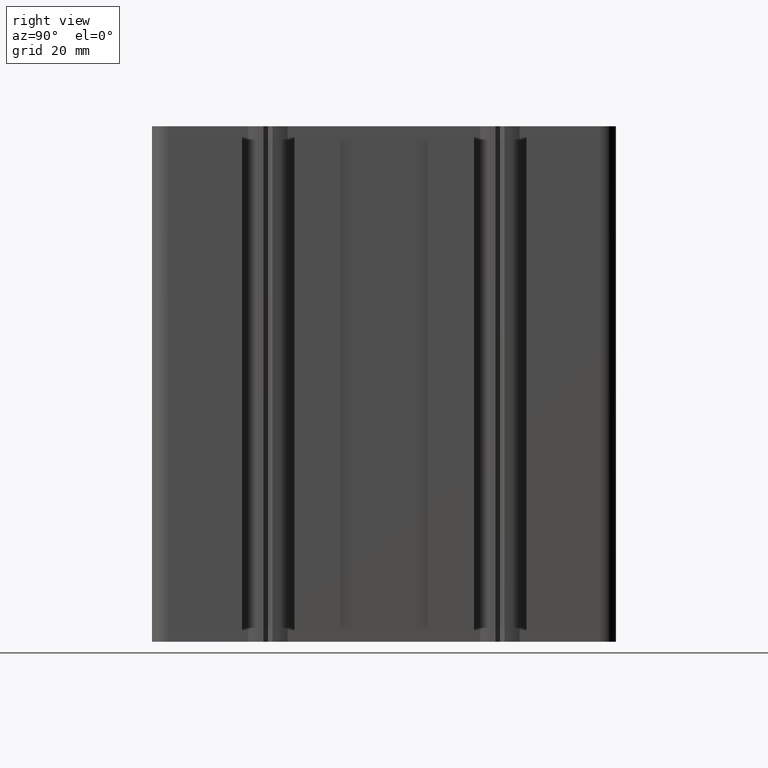
[diagram: clean part render]
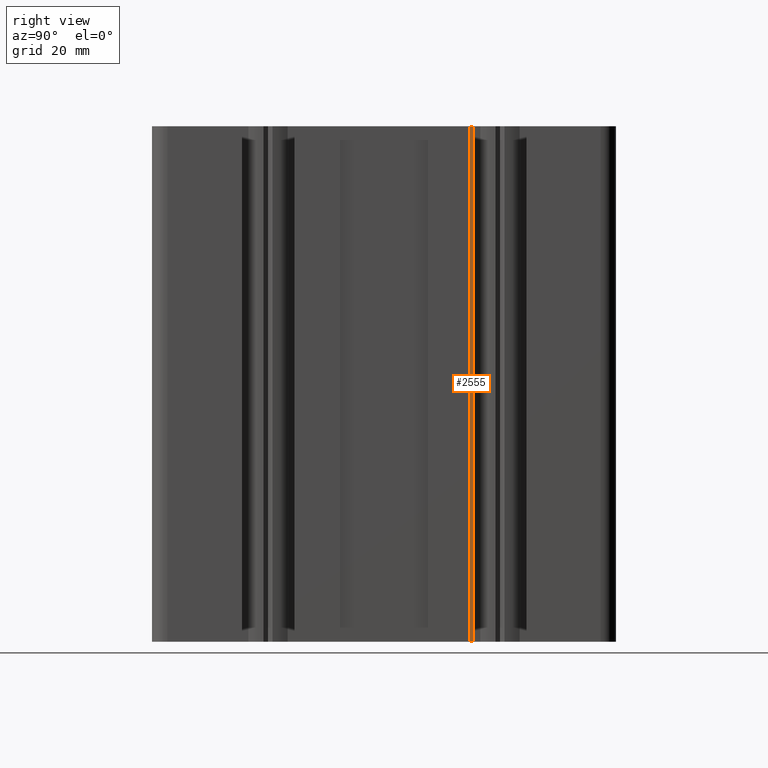
[diagram: same view with one face highlighted and labeled with its STEP entity id]
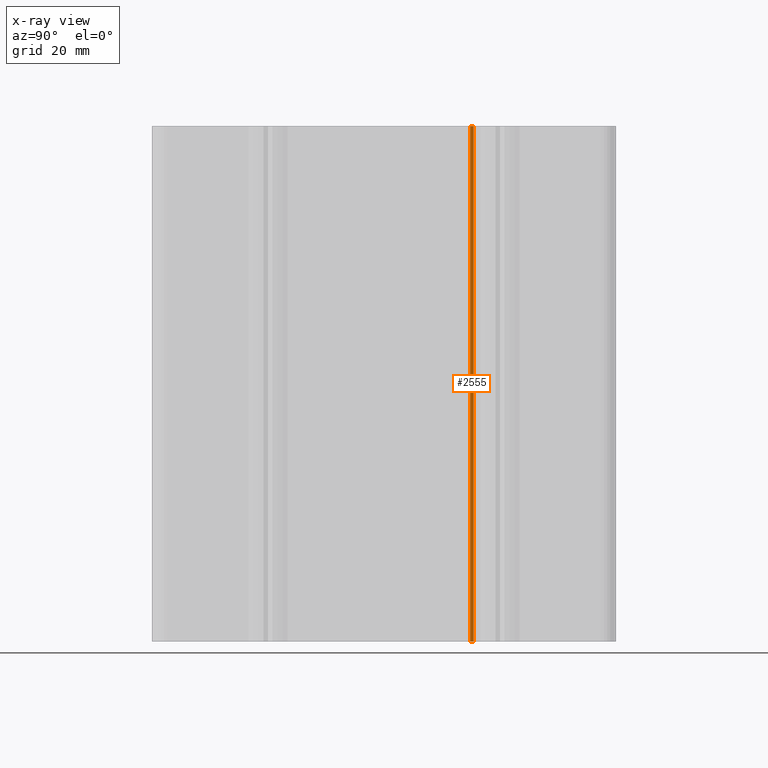
[diagram: x-ray of the same camera — body ghosted, the highlighted face saturated]
A machine part, right view. The second image highlights one B-rep face of the part: STEP entity #2555.
The next image is the same camera in x-ray: the body ghosted, the highlighted face saturated — about 0% of this face is hidden behind the body in this view.
In plain terms, the highlighted planar face has unit normal (-1, 0, 0).
Its self-contained STEP definition (entity closure, byte-faithful):
#1637 = VERTEX_POINT ( 'NONE', #6879 ) ;
#1640 = VERTEX_POINT ( 'NONE', #6912 ) ;
#1653 = EDGE_CURVE ( 'NONE', #1640, #1637, #6944, .T. ) ;
#2553 = EDGE_CURVE ( 'NONE', #1637, #4064, #7988, .T. ) ;
#2554 = ORIENTED_EDGE ( 'NONE', *, *, #2553, .F. ) ;
#2555 = ADVANCED_FACE ( 'NONE', ( #7751 ), #7752, .F. ) ;
#2556 = ORIENTED_EDGE ( 'NONE', *, *, #4107, .T. ) ;
#2558 = ORIENTED_EDGE ( 'NONE', *, *, #2570, .T. ) ;
#2559 = ORIENTED_EDGE ( 'NONE', *, *, #1653, .F. ) ;
#2567 = EDGE_LOOP ( 'NONE', ( #2556, #2554, #2559, #2558 ) ) ;
#2570 = EDGE_CURVE ( 'NONE', #1640, #4108, #8026, .T. ) ;
#4064 = VERTEX_POINT ( 'NONE', #10157 ) ;
#4107 = EDGE_CURVE ( 'NONE', #4108, #4064, #10240, .T. ) ;
#4108 = VERTEX_POINT ( 'NONE', #10238 ) ;
#6879 = CARTESIAN_POINT ( 'NONE',  ( 21.00000000000000000, 17.39999999999999900, 100.0000000000000000 ) ) ;
#6912 = CARTESIAN_POINT ( 'NONE',  ( 21.00000000000000000, 16.70000100000000000, 100.0000000000000000 ) ) ;
#6941 = DIRECTION ( 'NONE',  ( -0.0000000000000000000, 1.000000000000000000, -0.0000000000000000000 ) ) ;
#6942 = VECTOR ( 'NONE', #6941, 1000.000000000000000 ) ;
#6943 = CARTESIAN_POINT ( 'NONE',  ( 21.00000000000000000, 17.39999999999999900, 100.0000000000000000 ) ) ;
#6944 = LINE ( 'NONE', #6943, #6942 ) ;
#7279 = DIRECTION ( 'NONE',  ( 0.0000000000000000000, 0.0000000000000000000, 1.000000000000000000 ) ) ;
#7304 = DIRECTION ( 'NONE',  ( -0.0000000000000000000, -0.0000000000000000000, -1.000000000000000000 ) ) ;
#7744 = DIRECTION ( 'NONE',  ( -1.000000000000000000, 0.0000000000000000000, 0.0000000000000000000 ) ) ;
#7745 = CARTESIAN_POINT ( 'NONE',  ( 21.00000000000000000, 17.39999999999999900, 100.0000000000000000 ) ) ;
#7746 = AXIS2_PLACEMENT_3D ( 'NONE', #7745, #7744, #7279 ) ;
#7751 = FACE_OUTER_BOUND ( 'NONE', #2567, .T. ) ;
#7752 = PLANE ( 'NONE',  #7746 ) ;
#7981 = VECTOR ( 'NONE', #7304, 1000.000000000000000 ) ;
#7982 = CARTESIAN_POINT ( 'NONE',  ( 21.00000000000000000, 17.39999999999999900, 100.0000000000000000 ) ) ;
#7988 = LINE ( 'NONE', #7982, #7981 ) ;
#8023 = DIRECTION ( 'NONE',  ( -0.0000000000000000000, -0.0000000000000000000, -1.000000000000000000 ) ) ;
#8024 = VECTOR ( 'NONE', #8023, 1000.000000000000000 ) ;
#8025 = CARTESIAN_POINT ( 'NONE',  ( 21.00000000000000000, 16.70000100000000000, 100.0000000000000000 ) ) ;
#8026 = LINE ( 'NONE', #8025, #8024 ) ;
#10157 = CARTESIAN_POINT ( 'NONE',  ( 21.00000000000000000, 17.39999999999999900, 0.0000000000000000000 ) ) ;
#10235 = DIRECTION ( 'NONE',  ( -0.0000000000000000000, 1.000000000000000000, -0.0000000000000000000 ) ) ;
#10236 = VECTOR ( 'NONE', #10235, 1000.000000000000000 ) ;
#10237 = CARTESIAN_POINT ( 'NONE',  ( 21.00000000000000000, 17.39999999999999900, 0.0000000000000000000 ) ) ;
#10238 = CARTESIAN_POINT ( 'NONE',  ( 21.00000000000000000, 16.70000100000000000, 0.0000000000000000000 ) ) ;
#10240 = LINE ( 'NONE', #10237, #10236 ) ;